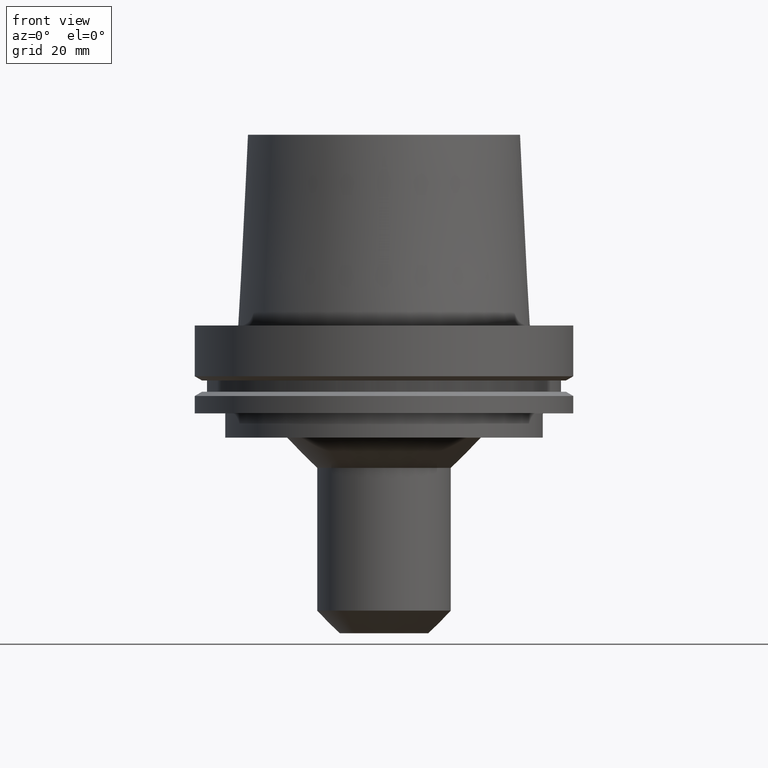
[diagram: clean part render]
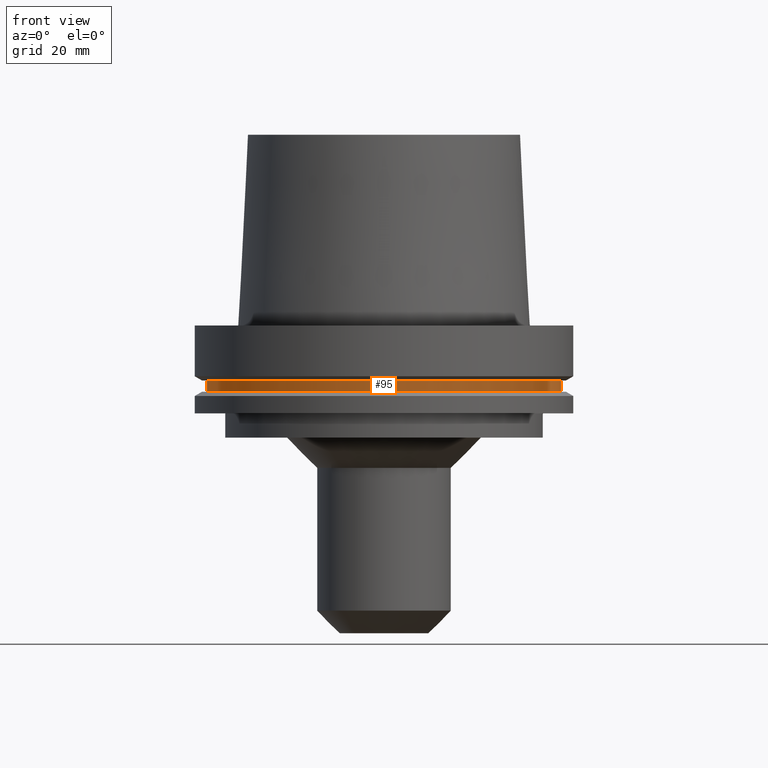
[diagram: same view with one face highlighted and labeled with its STEP entity id]
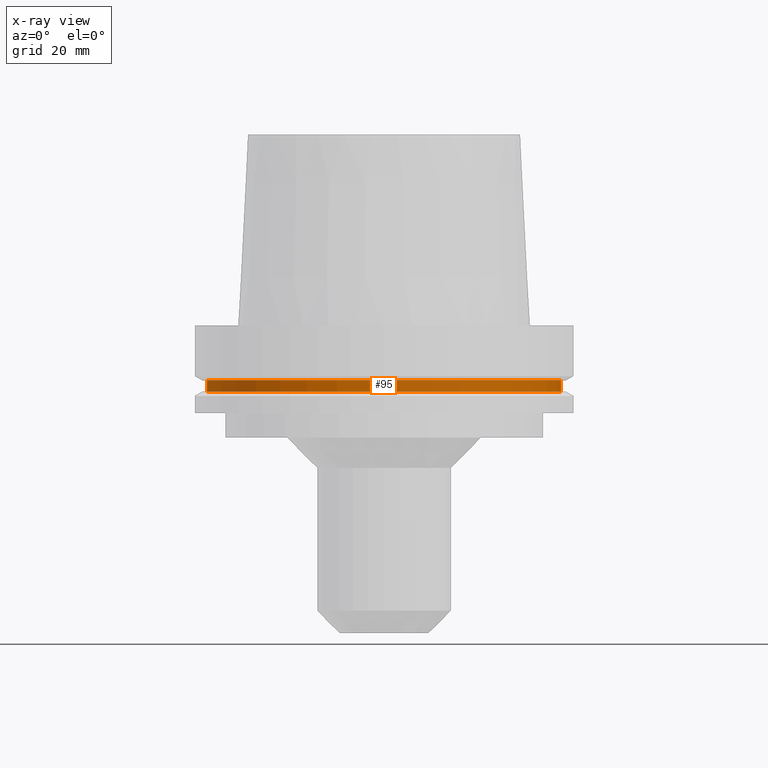
[diagram: x-ray of the same camera — body ghosted, the highlighted face saturated]
A machine part, front view. The second image highlights one B-rep face of the part: STEP entity #95.
The next image is the same camera in x-ray: the body ghosted, the highlighted face saturated — about 0% of this face is hidden behind the body in this view.
In plain terms, the highlighted cylindrical surface (bore or boss wall) has radius 58.5 mm, axis along (0, 0, -1).
Its self-contained STEP definition (entity closure, byte-faithful):
#95=ADVANCED_FACE('Unnamed[1]',(#215,#216),#217,.T.);
#111=EDGE_CURVE('Unnamed[1]',#241,#241,#242,.T.);
#135=EDGE_CURVE('Unnamed[1]',#280,#280,#281,.T.);
#215=FACE_BOUND('',#369,.T.);
#216=FACE_BOUND('',#370,.T.);
#217=CYLINDRICAL_SURFACE('',#371,58.4999999999999);
#241=VERTEX_POINT('',#402);
#242=CIRCLE('',#403,58.5);
#280=VERTEX_POINT('',#450);
#281=CIRCLE('',#451,58.4999999999998);
#369=EDGE_LOOP('',(#527));
#370=EDGE_LOOP('',(#528));
#371=AXIS2_PLACEMENT_3D('',#529,#530,#531);
#402=CARTESIAN_POINT('',(1.10983616172739E-015,58.5,-18.1250000000017));
#403=AXIS2_PLACEMENT_3D('',#556,#557,#558);
#450=CARTESIAN_POINT('',(1.33945743656732E-015,58.4999999999998,-21.8749999999984));
#451=AXIS2_PLACEMENT_3D('',#601,#602,#603);
#527=ORIENTED_EDGE('',*,*,#135,.F.);
#528=ORIENTED_EDGE('',*,*,#111,.T.);
#529=CARTESIAN_POINT('',(1.22464679914736E-015,2.44929359829471E-015,-20.0));
#530=DIRECTION('',(6.12323399573677E-017,1.22464679914762E-016,-1.0));
#531=DIRECTION('',(-1.23259516440783E-032,1.0,1.22464679914762E-016));
#556=CARTESIAN_POINT('',(1.10983616172739E-015,2.21967232345478E-015,-18.1250000000017));
#557=DIRECTION('',(6.12323399573677E-017,1.22464679914762E-016,-1.0));
#558=DIRECTION('',(-1.23259516440783E-032,1.0,1.22464679914762E-016));
#601=CARTESIAN_POINT('',(1.33945743656732E-015,2.67891487313464E-015,-21.8749999999984));
#602=DIRECTION('',(6.12323399573677E-017,1.22464679914763E-016,-1.0));
#603=DIRECTION('',(-1.23259516440784E-032,1.0,1.22464679914763E-016));